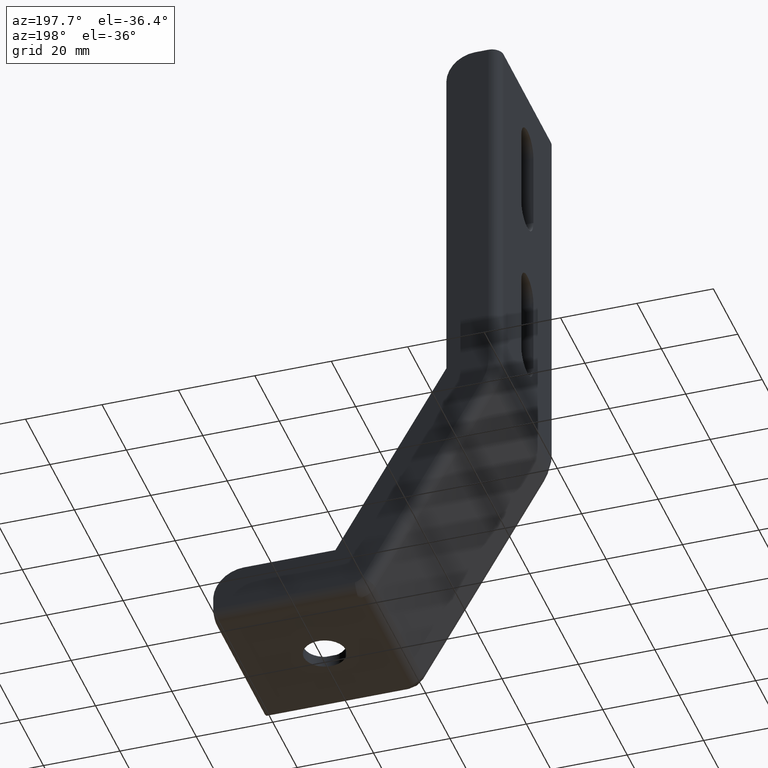
[diagram: clean part render]
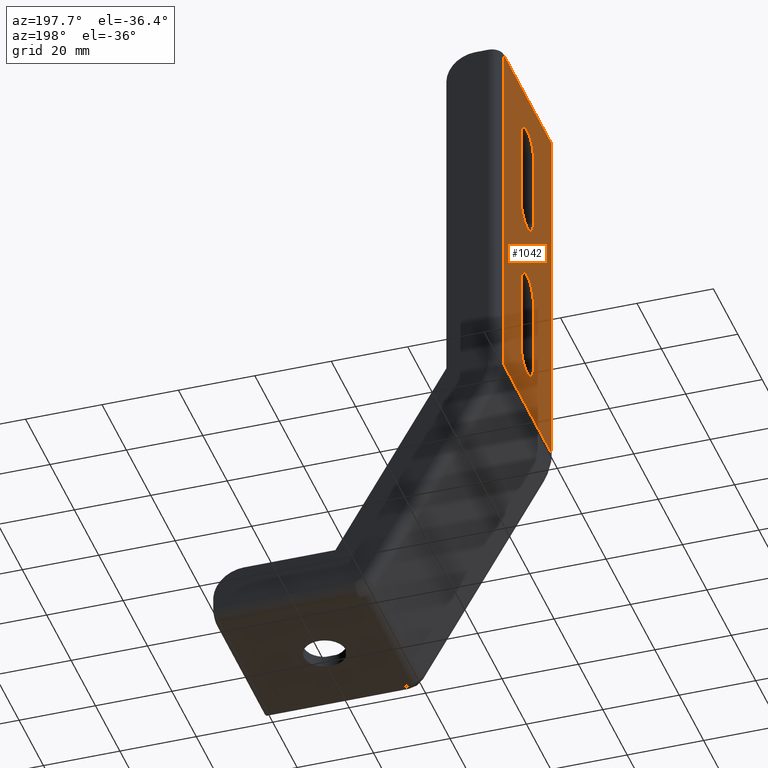
[diagram: same view with one face highlighted and labeled with its STEP entity id]
A machine part, auxiliary view. The second image highlights one B-rep face of the part: STEP entity #1042.
In plain terms, the highlighted planar face has unit normal (1, 0, 0).
Its self-contained STEP definition (entity closure, byte-faithful):
#414=CARTESIAN_POINT('',(-52.999894000779022,-19.499907517413018,64.055108888691393));
#415=VERTEX_POINT('',#414);
#532=CARTESIAN_POINT('',(-52.999894000779022,-19.499907517413011,159.999679999049480));
#533=VERTEX_POINT('',#532);
#541=CARTESIAN_POINT('',(-52.999894000779022,-19.499907517413018,64.055108888691393));
#542=DIRECTION('',(0.0,0.0,1.0));
#543=VECTOR('',#542,95.944571110358083);
#544=LINE('',#541,#543);
#545=EDGE_CURVE('',#415,#533,#544,.T.);
#602=CARTESIAN_POINT('',(-52.999894000791755,19.500002482406902,64.055108888691393));
#603=VERTEX_POINT('',#602);
#656=CARTESIAN_POINT('',(-52.999894000779022,19.500002482406909,159.999679998782090));
#657=VERTEX_POINT('',#656);
#658=CARTESIAN_POINT('',(-52.999894000779022,19.500002482406902,64.055108888691393));
#659=DIRECTION('',(0.0,0.0,1.0));
#660=VECTOR('',#659,95.944571110090692);
#661=LINE('',#658,#660);
#662=EDGE_CURVE('',#603,#657,#661,.T.);
#938=CARTESIAN_POINT('',(-52.999894000779022,19.500002482406902,64.055108888691393));
#939=DIRECTION('',(0.0,-1.0,0.0));
#940=VECTOR('',#939,38.999909999819920);
#941=LINE('',#938,#940);
#942=EDGE_CURVE('',#603,#415,#941,.T.);
#954=CARTESIAN_POINT('',(-52.999894000779022,22.500411336716983,64.054700034381312));
#955=DIRECTION('',(1.0,0.0,0.0));
#956=DIRECTION('',(0.0,0.0,1.0));
#957=AXIS2_PLACEMENT_3D('',#954,#955,#956);
#958=PLANE('',#957);
#959=ORIENTED_EDGE('',*,*,#942,.T.);
#960=ORIENTED_EDGE('',*,*,#545,.T.);
#961=CARTESIAN_POINT('',(-52.999894000779022,19.500002482406909,159.999679998782090));
#962=DIRECTION('',(0.0,-1.0,0.0));
#963=VECTOR('',#962,38.999909999819920);
#964=LINE('',#961,#963);
#965=EDGE_CURVE('',#657,#533,#964,.T.);
#966=ORIENTED_EDGE('',*,*,#965,.F.);
#967=ORIENTED_EDGE('',*,*,#662,.F.);
#968=EDGE_LOOP('',(#959,#960,#966,#967));
#969=FACE_OUTER_BOUND('',#968,.T.);
#970=CARTESIAN_POINT('',(-52.999894000779022,4.999989999980024,124.999749999499730));
#971=VERTEX_POINT('',#970);
#972=CARTESIAN_POINT('',(-52.999894000779022,4.999989999980025,144.999709999419790));
#973=VERTEX_POINT('',#972);
#974=CARTESIAN_POINT('',(-52.999894000779022,4.999989999980024,124.999749999499730));
#975=DIRECTION('',(0.0,0.0,1.0));
#976=VECTOR('',#975,19.999959999920065);
#977=LINE('',#974,#976);
#978=EDGE_CURVE('',#971,#973,#977,.T.);
#979=ORIENTED_EDGE('',*,*,#978,.T.);
#980=CARTESIAN_POINT('',(-52.999894000779022,-4.999989999980008,144.999709999419790));
#981=VERTEX_POINT('',#980);
#982=CARTESIAN_POINT('',(-52.999894000779022,8.878672E-015,144.999709999419790));
#983=DIRECTION('',(-1.0,0.0,0.0));
#984=DIRECTION('',(0.0,1.0,-6.123234E-017));
#985=AXIS2_PLACEMENT_3D('',#982,#983,#984);
#986=CIRCLE('',#985,4.999989999980016);
#987=EDGE_CURVE('',#981,#973,#986,.T.);
#988=ORIENTED_EDGE('',*,*,#987,.F.);
#989=CARTESIAN_POINT('',(-52.999894000779022,-4.999989999980008,124.999749999499730));
#990=VERTEX_POINT('',#989);
#991=CARTESIAN_POINT('',(-52.999894000779022,-4.999989999980008,124.999749999499730));
#992=DIRECTION('',(0.0,0.0,1.0));
#993=VECTOR('',#992,19.999959999920065);
#994=LINE('',#991,#993);
#995=EDGE_CURVE('',#990,#981,#994,.T.);
#996=ORIENTED_EDGE('',*,*,#995,.F.);
#997=CARTESIAN_POINT('',(-52.999894000779022,7.654027E-015,124.999749999499730));
#998=DIRECTION('',(-1.0,0.0,0.0));
#999=DIRECTION('',(0.0,1.0,-6.123234E-017));
#1000=AXIS2_PLACEMENT_3D('',#997,#998,#999);
#1001=CIRCLE('',#1000,4.999989999980016);
#1002=EDGE_CURVE('',#971,#990,#1001,.T.);
#1003=ORIENTED_EDGE('',*,*,#1002,.F.);
#1004=EDGE_LOOP('',(#979,#988,#996,#1003));
#1005=FACE_BOUND('',#1004,.T.);
#1006=CARTESIAN_POINT('',(-52.999894000779022,4.999989999980022,79.999839999680262));
#1007=VERTEX_POINT('',#1006);
#1008=CARTESIAN_POINT('',(-52.999894000779022,4.999989999980023,99.999799999600327));
#1009=VERTEX_POINT('',#1008);
#1010=CARTESIAN_POINT('',(-52.999894000779022,4.999989999980022,79.999839999680262));
#1011=DIRECTION('',(0.0,0.0,1.0));
#1012=VECTOR('',#1011,19.999959999920065);
#1013=LINE('',#1010,#1012);
#1014=EDGE_CURVE('',#1007,#1009,#1013,.T.);
#1015=ORIENTED_EDGE('',*,*,#1014,.T.);
#1016=CARTESIAN_POINT('',(-52.999894000779022,-4.999989999980010,99.999799999600327));
#1017=VERTEX_POINT('',#1016);
#1018=CARTESIAN_POINT('',(-52.999894000779022,6.123222E-015,99.999799999600327));
#1019=DIRECTION('',(-1.0,0.0,0.0));
#1020=DIRECTION('',(0.0,1.0,-6.123234E-017));
#1021=AXIS2_PLACEMENT_3D('',#1018,#1019,#1020);
#1022=CIRCLE('',#1021,4.999989999980016);
#1023=EDGE_CURVE('',#1017,#1009,#1022,.T.);
#1024=ORIENTED_EDGE('',*,*,#1023,.F.);
#1025=CARTESIAN_POINT('',(-52.999894000779022,-4.999989999980011,79.999839999680262));
#1026=VERTEX_POINT('',#1025);
#1027=CARTESIAN_POINT('',(-52.999894000779022,-4.999989999980011,79.999839999680262));
#1028=DIRECTION('',(0.0,0.0,1.0));
#1029=VECTOR('',#1028,19.999959999920065);
#1030=LINE('',#1027,#1029);
#1031=EDGE_CURVE('',#1026,#1017,#1030,.T.);
#1032=ORIENTED_EDGE('',*,*,#1031,.F.);
#1033=CARTESIAN_POINT('',(-52.999894000779022,4.898577E-015,79.999839999680262));
#1034=DIRECTION('',(-1.0,0.0,0.0));
#1035=DIRECTION('',(0.0,1.0,-6.123234E-017));
#1036=AXIS2_PLACEMENT_3D('',#1033,#1034,#1035);
#1037=CIRCLE('',#1036,4.999989999980016);
#1038=EDGE_CURVE('',#1007,#1026,#1037,.T.);
#1039=ORIENTED_EDGE('',*,*,#1038,.F.);
#1040=EDGE_LOOP('',(#1015,#1024,#1032,#1039));
#1041=FACE_BOUND('',#1040,.T.);
#1042=ADVANCED_FACE('',(#969,#1005,#1041),#958,.F.);